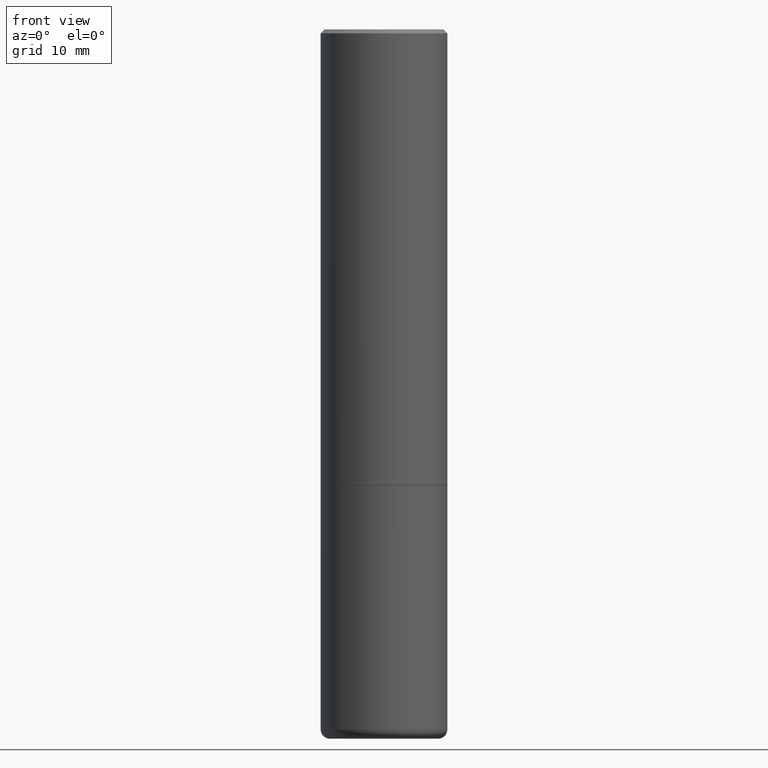
[diagram: clean part render]
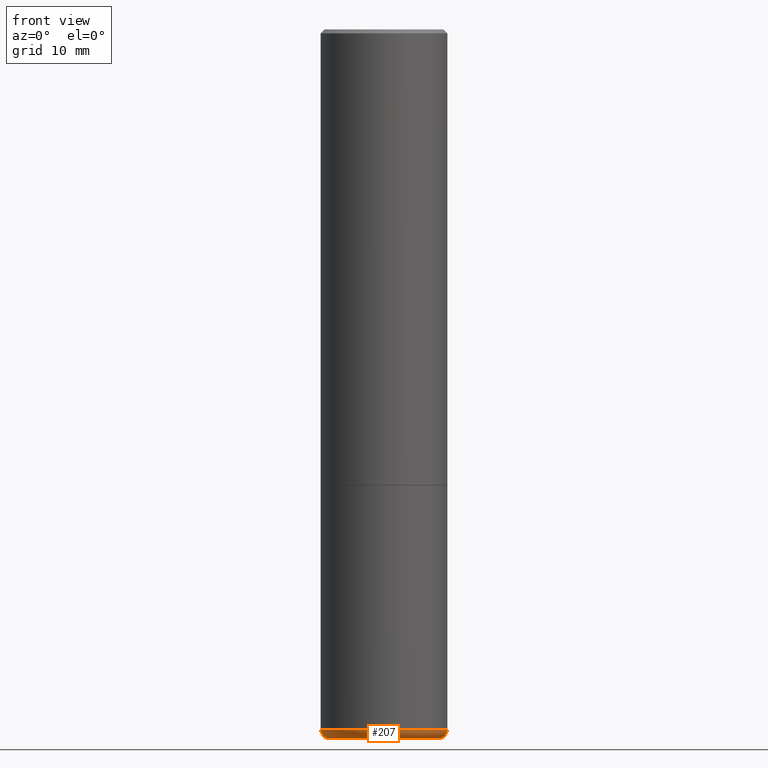
[diagram: same view with one face highlighted and labeled with its STEP entity id]
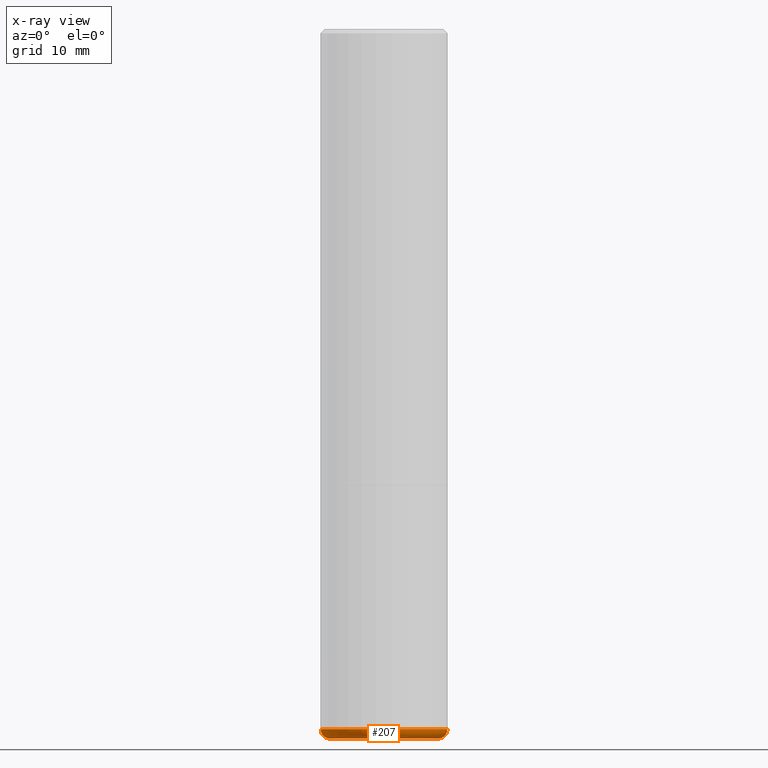
[diagram: x-ray of the same camera — body ghosted, the highlighted face saturated]
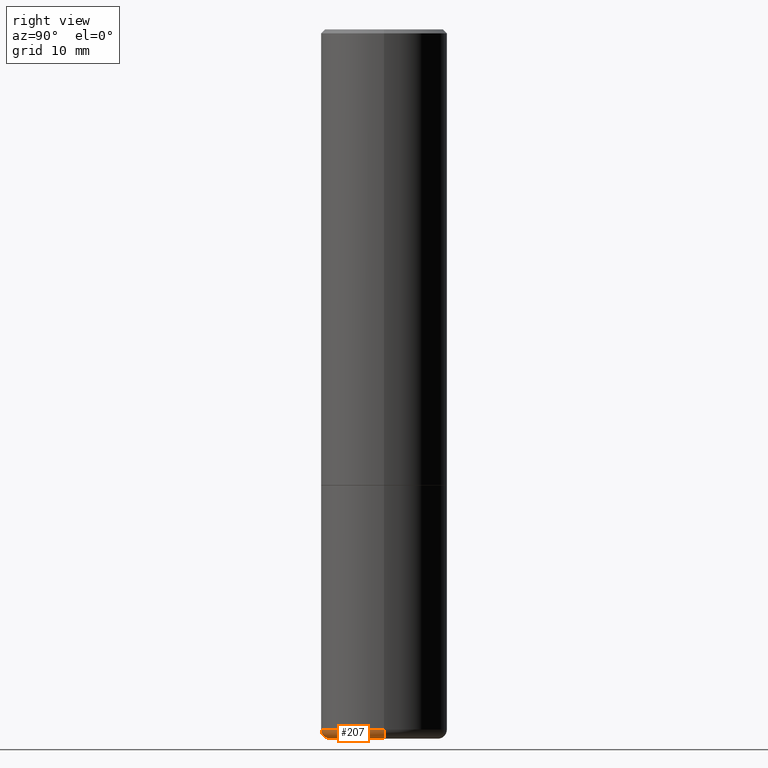
[diagram: same view with one face highlighted and labeled with its STEP entity id]
A machine part, front view. The second image highlights one B-rep face of the part: STEP entity #207.
The next image is the same camera in x-ray: the body ghosted, the highlighted face saturated — about 0% of this face is hidden behind the body in this view.
A second angle (right view) of the same face is appended — the face is thin or edge-on in the first view.
In plain terms, the highlighted toroidal blend (fillet) surface has major radius 6.7945 mm and minor (blend) radius 1.143 mm.
Its self-contained STEP definition (entity closure, byte-faithful):
#2 = EDGE_LOOP ( 'NONE', ( #237, #63, #130, #232 ) ) ;
#10 = CARTESIAN_POINT ( 'NONE',  ( -0.3125000000000000000, -7.739112131260931893E-15, -3.455061670936044216 ) ) ;
#13 = EDGE_CURVE ( 'NONE', #442, #102, #303, .T. ) ;
#15 = AXIS2_PLACEMENT_3D ( 'NONE', #248, #353, #317 ) ;
#35 = CARTESIAN_POINT ( 'NONE',  ( 0.2651448819690678804, -1.407168150092053958E-14, -3.500000000000000000 ) ) ;
#63 = ORIENTED_EDGE ( 'NONE', *, *, #387, .T. ) ;
#69 = CARTESIAN_POINT ( 'NONE',  ( -0.2675000000000000155, -1.016258153046714615E-14, -3.455061670936044216 ) ) ;
#75 = EDGE_CURVE ( 'NONE', #375, #102, #87, .T. ) ;
#81 = CIRCLE ( 'NONE', #333, 0.2651448819690678804 ) ;
#87 = CIRCLE ( 'NONE', #15, 0.04499999999999999833 ) ;
#95 = AXIS2_PLACEMENT_3D ( 'NONE', #69, #352, #241 ) ;
#102 = VERTEX_POINT ( 'NONE', #148 ) ;
#109 = DIRECTION ( 'NONE',  ( -2.445468806185136597E-29, 3.491481338843145583E-15, 1.000000000000000000 ) ) ;
#116 = DIRECTION ( 'NONE',  ( 1.000000000000000000, -6.982962677686269077E-15, 0.000000000000000000 ) ) ;
#130 = ORIENTED_EDGE ( 'NONE', *, *, #75, .T. ) ;
#148 = CARTESIAN_POINT ( 'NONE',  ( 0.3125000000000000000, -1.424545918540237458E-14, -3.455061670936044216 ) ) ;
#154 = CARTESIAN_POINT ( 'NONE',  ( -0.2651448819690678804, -1.008952714362760311E-14, -3.500000000000000000 ) ) ;
#174 = CIRCLE ( 'NONE', #95, 0.04499999999999999833 ) ;
#178 = CARTESIAN_POINT ( 'NONE',  ( 8.559140821647976968E-29, -1.222018468595100934E-14, -3.500000000000000000 ) ) ;
#191 = AXIS2_PLACEMENT_3D ( 'NONE', #274, #109, #116 ) ;
#204 = DIRECTION ( 'NONE',  ( 1.000000000000000000, -6.982962677686266711E-15, 0.000000000000000000 ) ) ;
#207 = ADVANCED_FACE ( 'NONE', ( #246 ), #238, .T. ) ;
#216 = DIRECTION ( 'NONE',  ( -2.445468806185136597E-29, 3.491481338843145583E-15, 1.000000000000000000 ) ) ;
#232 = ORIENTED_EDGE ( 'NONE', *, *, #13, .F. ) ;
#237 = ORIENTED_EDGE ( 'NONE', *, *, #408, .F. ) ;
#238 = TOROIDAL_SURFACE ( 'NONE', #256, 0.2675000000000000155, 0.04499999999999999140 ) ;
#241 = DIRECTION ( 'NONE',  ( -1.000000000000000000, 7.105427357600990815E-15, 0.000000000000000000 ) ) ;
#246 = FACE_OUTER_BOUND ( 'NONE', #2, .T. ) ;
#248 = CARTESIAN_POINT ( 'NONE',  ( 0.2675000000000000155, -1.393122586490649131E-14, -3.455061670936044216 ) ) ;
#253 = VERTEX_POINT ( 'NONE', #154 ) ;
#256 = AXIS2_PLACEMENT_3D ( 'NONE', #344, #282, #423 ) ;
#274 = CARTESIAN_POINT ( 'NONE',  ( 8.449245539719989979E-29, -1.206328334862541465E-14, -3.455061670936044216 ) ) ;
#282 = DIRECTION ( 'NONE',  ( -2.445468806185136597E-29, 3.491481338843145583E-15, 1.000000000000000000 ) ) ;
#303 = CIRCLE ( 'NONE', #191, 0.3125000000000000000 ) ;
#317 = DIRECTION ( 'NONE',  ( 1.000000000000000000, -6.982962677686269077E-15, 0.000000000000000000 ) ) ;
#333 = AXIS2_PLACEMENT_3D ( 'NONE', #178, #216, #204 ) ;
#344 = CARTESIAN_POINT ( 'NONE',  ( 8.449245539719989979E-29, -1.206328334862541465E-14, -3.455061670936044216 ) ) ;
#352 = DIRECTION ( 'NONE',  ( 7.105427357601001859E-15, 1.000000000000000000, -3.491481338843145583E-15 ) ) ;
#353 = DIRECTION ( 'NONE',  ( -6.982962677686266711E-15, -1.000000000000000000, 3.491481338843145583E-15 ) ) ;
#375 = VERTEX_POINT ( 'NONE', #35 ) ;
#387 = EDGE_CURVE ( 'NONE', #253, #375, #81, .T. ) ;
#408 = EDGE_CURVE ( 'NONE', #253, #442, #174, .T. ) ;
#423 = DIRECTION ( 'NONE',  ( 1.000000000000000000, -6.982962677686269077E-15, 4.883557194083114022E-29 ) ) ;
#442 = VERTEX_POINT ( 'NONE', #10 ) ;